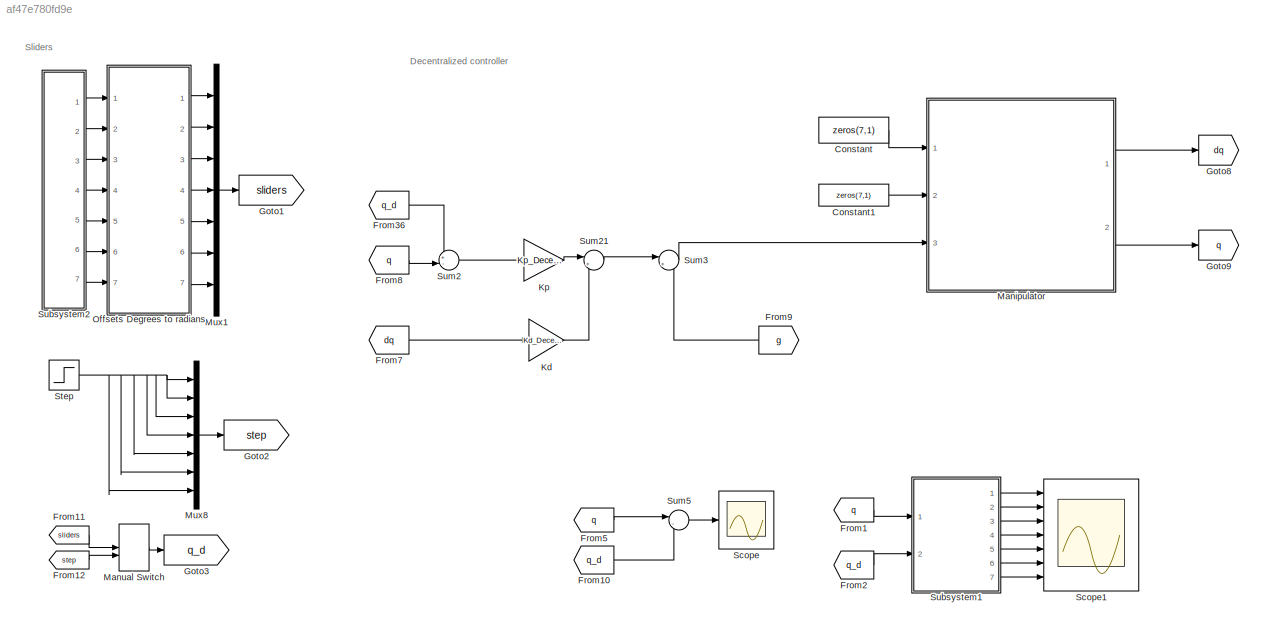
MODEL slx_af47e780fd9e
KIND model
CONFIG AbsTol = auto
CONFIG EnableMultiTasking = off
CONFIG FixedStep = auto
CONFIG MaxStep = auto
CONFIG MinStep = auto
CONFIG RelTol = 1e-3
CONFIG SampleTimeConstraint = Unconstrained
CONFIG Solver = VariableStepAuto
CONFIG SolverName = VariableStepAuto
CONFIG StartTime = 0.0
CONFIG StopTime = 5
BLOCK [Constant] Constant
  Value = zeros(7,1)
BLOCK [Constant] Constant1
  Value = zeros(7,1)
BLOCK [From] From1
  GotoTag = q
BLOCK [From] From10
  GotoTag = q_d
BLOCK [From] From11
  GotoTag = sliders
BLOCK [From] From12
  GotoTag = step
BLOCK [From] From2
  GotoTag = q_d
BLOCK [From] From36
  GotoTag = q_d
BLOCK [From] From5
  GotoTag = q
BLOCK [From] From7
  GotoTag = dq
BLOCK [From] From8
  GotoTag = q
BLOCK [From] From9
  GotoTag = g
  TagVisibility = global
BLOCK [Goto] Goto1
  GotoTag = sliders
BLOCK [Goto] Goto2
  GotoTag = step
BLOCK [Goto] Goto3
  GotoTag = q_d
BLOCK [Goto] Goto8
  GotoTag = dq
BLOCK [Goto] Goto9
  GotoTag = q
BLOCK [Gain] Kd
  Gain = Kd_Decent
  Multiplication = Matrix(K*u)
  OutDataTypeStr = Inherit: Inherit via internal rule
  ParamDataTypeStr = Inherit: Inherit via internal rule
  SaturateOnIntegerOverflow = off
BLOCK [Gain] Kp
  Gain = Kp_Decent
  Multiplication = Matrix(K*u)
  OutDataTypeStr = Inherit: Inherit via internal rule
  ParamDataTypeStr = Inherit: Inherit via internal rule
  SaturateOnIntegerOverflow = off
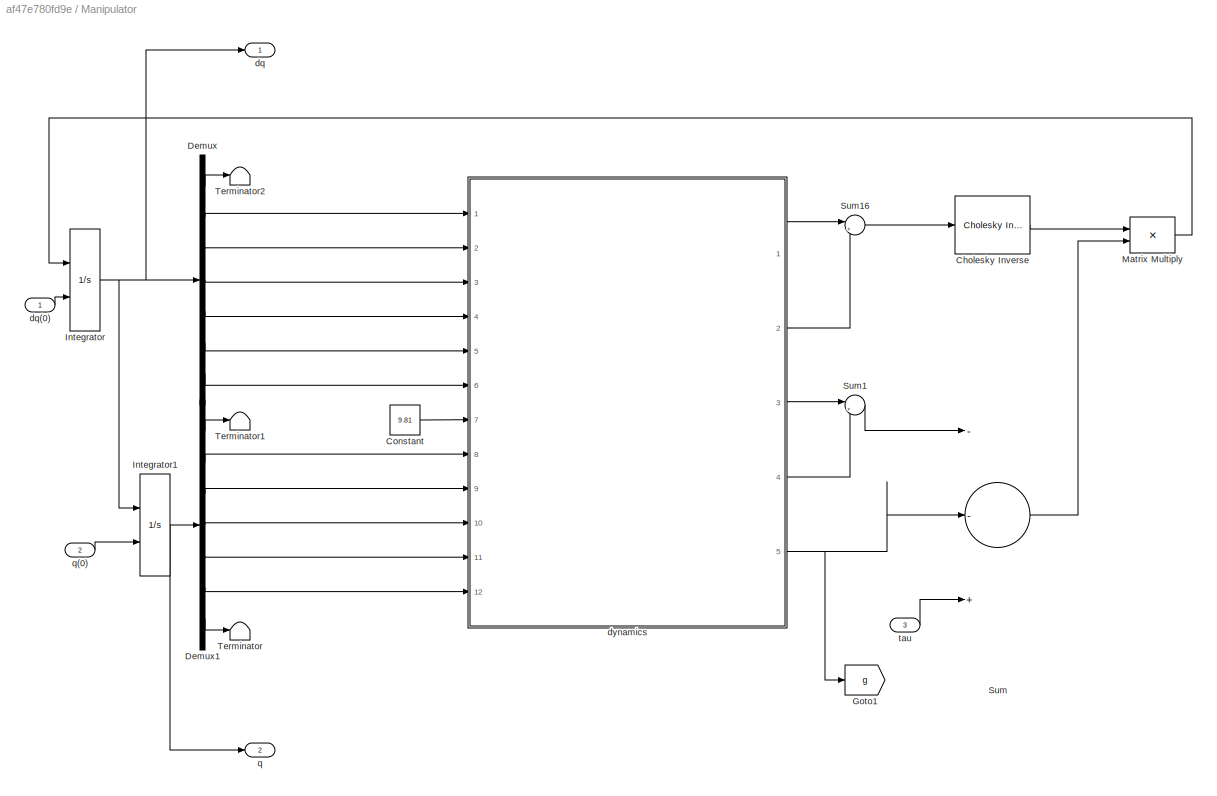
BLOCK [SubSystem] Manipulator
  Ports = [3, 2]
  RequestExecContextInheritance = off
BLOCK [Reference] Manipulator/Cholesky Inverse  REF=dspinverses/Cholesky Inverse
  Ports = [1, 1]
  SourceBlock = dspinverses/Cholesky Inverse
  SourceProductBaseCode = DS
  SourceProductName = DSP System Toolbox
  SourceType = Cholesky Inverse
BLOCK [Constant] Manipulator/Constant
  Value = 9.81
BLOCK [Demux] Manipulator/Demux
  DisplayOption = bar
  Outputs = 7
  Ports = [1, 7]
BLOCK [Demux] Manipulator/Demux1
  DisplayOption = bar
  Outputs = 7
  Ports = [1, 7]
BLOCK [Goto] Manipulator/Goto1
  GotoTag = g
  TagVisibility = global
BLOCK [Integrator] Manipulator/Integrator
  InitialConditionSource = external
  Ports = [2, 1]
BLOCK [Integrator] Manipulator/Integrator1
  InitialConditionSource = external
  Ports = [2, 1]
BLOCK [Product] Manipulator/Matrix Multiply
  InputSameDT = off
  Multiplication = Matrix(*)
  OutDataTypeStr = Inherit: Inherit via internal rule
  Ports = [2, 1]
  RndMeth = Floor
  SaturateOnIntegerOverflow = off
BLOCK [Sum] Manipulator/Sum
  InputSameDT = off
  Inputs = --+
  OutDataTypeStr = Inherit: Inherit via internal rule
  Ports = [3, 1]
  SaturateOnIntegerOverflow = off
BLOCK [Sum] Manipulator/Sum1
  IconShape = round
  InputSameDT = off
  Inputs = |++
  OutDataTypeStr = Inherit: Inherit via internal rule
  Ports = [2, 1]
  SaturateOnIntegerOverflow = off
BLOCK [Sum] Manipulator/Sum16
  IconShape = round
  InputSameDT = off
  Inputs = |++
  OutDataTypeStr = Inherit: Inherit via internal rule
  Ports = [2, 1]
  SaturateOnIntegerOverflow = off
BLOCK [Terminator] Manipulator/Terminator
BLOCK [Terminator] Manipulator/Terminator1
BLOCK [Terminator] Manipulator/Terminator2
BLOCK [Outport] Manipulator/dq
  IconDisplay = Port number
BLOCK [Inport] Manipulator/dq(0) 
  IconDisplay = Port number
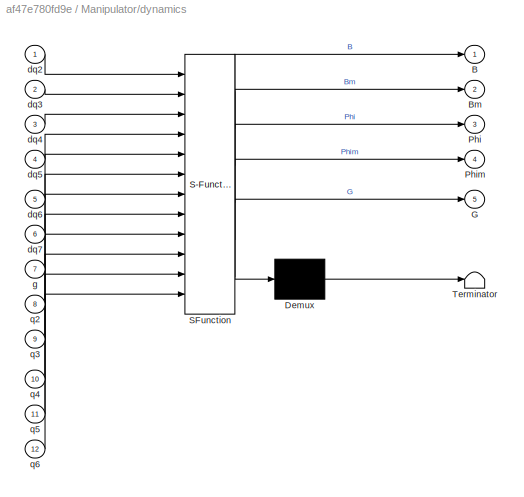
BLOCK [SubSystem] Manipulator/dynamics
  ErrorFcn = Stateflow.Translate.translate
  PermitHierarchicalResolution = ExplicitOnly
  Ports = [12, 5]
  RequestExecContextInheritance = off
  SFBlockType = MATLAB Function
  TreatAsAtomicUnit = on
BLOCK [Demux] Manipulator/dynamics/ Demux 
  Outputs = 1
  Ports = [1, 1]
BLOCK [S-Function] Manipulator/dynamics/ SFunction 
  EnableBusSupport = on
  FunctionName = sf_sfun
  PortCounts = [12 6]
  Ports = [12, 6]
  SFcnIsStateOwnerBlock = off
  SFunctionDeploymentMode = off
  Tag = Stateflow S-Function Decentralized_Cont 12
BLOCK [Terminator] Manipulator/dynamics/ Terminator 
BLOCK [Outport] Manipulator/dynamics/B
  IconDisplay = Port number
BLOCK [Outport] Manipulator/dynamics/Bm
  IconDisplay = Port number
  Port = 2
BLOCK [Outport] Manipulator/dynamics/G
  IconDisplay = Port number
  Port = 5
BLOCK [Outport] Manipulator/dynamics/Phi
  IconDisplay = Port number
  Port = 3
BLOCK [Outport] Manipulator/dynamics/Phim
  IconDisplay = Port number
  Port = 4
BLOCK [Inport] Manipulator/dynamics/dq2
  IconDisplay = Port number
BLOCK [Inport] Manipulator/dynamics/dq3
  IconDisplay = Port number
  Port = 2
BLOCK [Inport] Manipulator/dynamics/dq4
  IconDisplay = Port number
  Port = 3
BLOCK [Inport] Manipulator/dynamics/dq5
  IconDisplay = Port number
  Port = 4
BLOCK [Inport] Manipulator/dynamics/dq6
  IconDisplay = Port number
  Port = 5
BLOCK [Inport] Manipulator/dynamics/dq7
  IconDisplay = Port number
  Port = 6
BLOCK [Inport] Manipulator/dynamics/g
  IconDisplay = Port number
  Port = 7
BLOCK [Inport] Manipulator/dynamics/q2
  IconDisplay = Port number
  Port = 8
BLOCK [Inport] Manipulator/dynamics/q3
  IconDisplay = Port number
  Port = 9
BLOCK [Inport] Manipulator/dynamics/q4
  IconDisplay = Port number
  Port = 10
BLOCK [Inport] Manipulator/dynamics/q5
  IconDisplay = Port number
  Port = 11
BLOCK [Inport] Manipulator/dynamics/q6
  IconDisplay = Port number
  Port = 12
BLOCK [Outport] Manipulator/q
  IconDisplay = Port number
  Port = 2
BLOCK [Inport] Manipulator/q(0) 
  IconDisplay = Port number
  Port = 2
BLOCK [Inport] Manipulator/tau
  IconDisplay = Port number
  Port = 3
BLOCK [ManualSwitch] Manual Switch
  CurrentSetting = 0
BLOCK [Mux] Mux1
  DisplayOption = bar
  Inputs = 7
  Ports = [7, 1]
BLOCK [Mux] Mux8
  DisplayOption = bar
  Inputs = 7
  Ports = [7, 1]
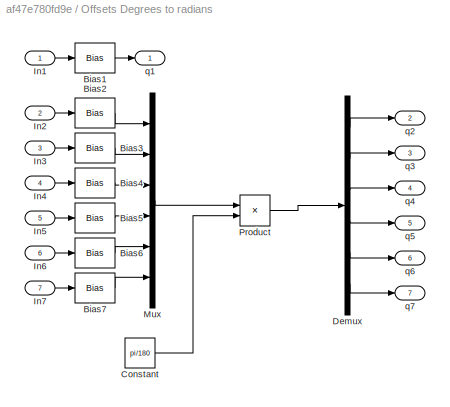
BLOCK [SubSystem] Offsets Degrees to radians
  Ports = [7, 7]
  RequestExecContextInheritance = off
BLOCK [Bias] Offsets Degrees to radians/Bias1
  SaturateOnIntegerOverflow = off
BLOCK [Bias] Offsets Degrees to radians/Bias2
  SaturateOnIntegerOverflow = off
BLOCK [Bias] Offsets Degrees to radians/Bias3
  SaturateOnIntegerOverflow = off
BLOCK [Bias] Offsets Degrees to radians/Bias4
  Bias = -90
  SaturateOnIntegerOverflow = off
BLOCK [Bias] Offsets Degrees to radians/Bias5
  SaturateOnIntegerOverflow = off
BLOCK [Bias] Offsets Degrees to radians/Bias6
  SaturateOnIntegerOverflow = off
BLOCK [Bias] Offsets Degrees to radians/Bias7
  Bias = 180
  SaturateOnIntegerOverflow = off
BLOCK [Constant] Offsets Degrees to radians/Constant
  Value = pi/180
BLOCK [Demux] Offsets Degrees to radians/Demux
  DisplayOption = bar
  Outputs = 6
  Ports = [1, 6]
BLOCK [Inport] Offsets Degrees to radians/In1
  IconDisplay = Port number
BLOCK [Inport] Offsets Degrees to radians/In2
  IconDisplay = Port number
  Port = 2
BLOCK [Inport] Offsets Degrees to radians/In3
  IconDisplay = Port number
  Port = 3
BLOCK [Inport] Offsets Degrees to radians/In4
  IconDisplay = Port number
  Port = 4
BLOCK [Inport] Offsets Degrees to radians/In5
  IconDisplay = Port number
  Port = 5
BLOCK [Inport] Offsets Degrees to radians/In6
  IconDisplay = Port number
  Port = 6
BLOCK [Inport] Offsets Degrees to radians/In7
  IconDisplay = Port number
  Port = 7
BLOCK [Mux] Offsets Degrees to radians/Mux
  DisplayOption = bar
  Inputs = 6
  Ports = [6, 1]
BLOCK [Product] Offsets Degrees to radians/Product
  InputSameDT = off
  OutDataTypeStr = Inherit: Inherit via internal rule
  Ports = [2, 1]
  RndMeth = Floor
  SaturateOnIntegerOverflow = off
BLOCK [Outport] Offsets Degrees to radians/q1
  IconDisplay = Port number
BLOCK [Outport] Offsets Degrees to radians/q2
  IconDisplay = Port number
  Port = 2
BLOCK [Outport] Offsets Degrees to radians/q3
  IconDisplay = Port number
  Port = 3
BLOCK [Outport] Offsets Degrees to radians/q4
  IconDisplay = Port number
  Port = 4
BLOCK [Outport] Offsets Degrees to radians/q5
  IconDisplay = Port number
  Port = 5
BLOCK [Outport] Offsets Degrees to radians/q6
  IconDisplay = Port number
  Port = 6
BLOCK [Outport] Offsets Degrees to radians/q7
  IconDisplay = Port number
  Port = 7
BLOCK [Scope] Scope
  Floating = off
  NumInputPorts = 1
  Ports = [1]
  ScopeSpecificationString = Simulink.scopes.TimeScopeBlockCfg('CurrentConfiguration', extmgr.ConfigurationSet(extmgr.Configuration('Core','General UI',true),extmgr.Configuration('Core','Source UI',true),extmgr.Configuration('Sources','WiredSimulink',true,'DataLoggingVariableName','ScopeData1','DataLogging',true,'DataLoggingSaveFormat','StructureWithTime'),extmgr.Configuration('Visuals','Time Domain',true,'SerializedDisplays'...<+1785ch>
BLOCK [Scope] Scope1
  Floating = off
  NumInputPorts = 7
  Ports = [7]
  ScopeSpecificationString = Simulink.scopes.TimeScopeBlockCfg('CurrentConfiguration', extmgr.ConfigurationSet(extmgr.Configuration('Core','General UI',true),extmgr.Configuration('Core','Source UI',true),extmgr.Configuration('Sources','WiredSimulink',true,'DataLoggingVariableName','ScopeData2'),extmgr.Configuration('Visuals','Time Domain',true,'SerializedDisplays',{struct('MinYLimReal','-0.18751','MaxYLimReal','1.6876','YLabe...<+6624ch>
BLOCK [Step] Step
  SampleTime = 0
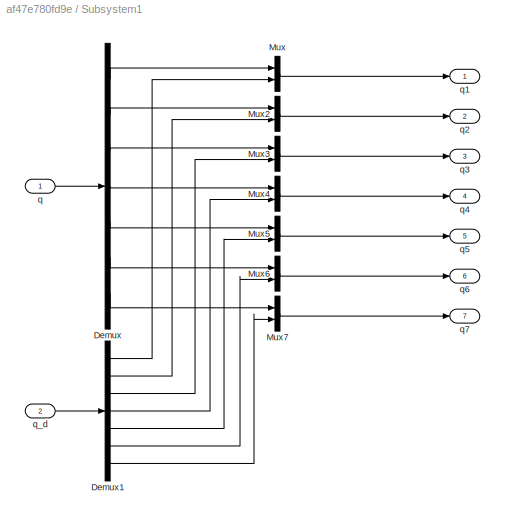
BLOCK [SubSystem] Subsystem1
  Ports = [2, 7]
  RequestExecContextInheritance = off
BLOCK [Demux] Subsystem1/Demux
  DisplayOption = bar
  Outputs = 7
  Ports = [1, 7]
BLOCK [Demux] Subsystem1/Demux1
  DisplayOption = bar
  Outputs = 7
  Ports = [1, 7]
BLOCK [Mux] Subsystem1/Mux
  DisplayOption = bar
  Inputs = 2
  Ports = [2, 1]
BLOCK [Mux] Subsystem1/Mux2
  DisplayOption = bar
  Inputs = 2
  Ports = [2, 1]
BLOCK [Mux] Subsystem1/Mux3
  DisplayOption = bar
  Inputs = 2
  Ports = [2, 1]
BLOCK [Mux] Subsystem1/Mux4
  DisplayOption = bar
  Inputs = 2
  Ports = [2, 1]
BLOCK [Mux] Subsystem1/Mux5
  DisplayOption = bar
  Inputs = 2
  Ports = [2, 1]
BLOCK [Mux] Subsystem1/Mux6
  DisplayOption = bar
  Inputs = 2
  Ports = [2, 1]
BLOCK [Mux] Subsystem1/Mux7
  DisplayOption = bar
  Inputs = 2
  Ports = [2, 1]
BLOCK [Inport] Subsystem1/q
  IconDisplay = Port number
BLOCK [Outport] Subsystem1/q1
  IconDisplay = Port number
BLOCK [Outport] Subsystem1/q2
  IconDisplay = Port number
  Port = 2
BLOCK [Outport] Subsystem1/q3
  IconDisplay = Port number
  Port = 3
BLOCK [Outport] Subsystem1/q4
  IconDisplay = Port number
  Port = 4
BLOCK [Outport] Subsystem1/q5
  IconDisplay = Port number
  Port = 5
BLOCK [Outport] Subsystem1/q6
  IconDisplay = Port number
  Port = 6
BLOCK [Outport] Subsystem1/q7
  IconDisplay = Port number
  Port = 7
BLOCK [Inport] Subsystem1/q_d
  IconDisplay = Port number
  Port = 2
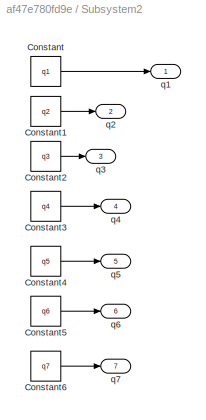
BLOCK [SubSystem] Subsystem2
  Ports = [0, 7]
  RequestExecContextInheritance = off
BLOCK [Constant] Subsystem2/Constant
  Value = q1
BLOCK [Constant] Subsystem2/Constant1
  Value = q2
BLOCK [Constant] Subsystem2/Constant2
  Value = q3
BLOCK [Constant] Subsystem2/Constant3
  Value = q4
BLOCK [Constant] Subsystem2/Constant4
  Value = q5
BLOCK [Constant] Subsystem2/Constant5
  Value = q6
BLOCK [Constant] Subsystem2/Constant6
  Value = q7
BLOCK [Outport] Subsystem2/q1
  IconDisplay = Port number
BLOCK [Outport] Subsystem2/q2
  IconDisplay = Port number
  Port = 2
BLOCK [Outport] Subsystem2/q3
  IconDisplay = Port number
  Port = 3
BLOCK [Outport] Subsystem2/q4
  IconDisplay = Port number
  Port = 4
BLOCK [Outport] Subsystem2/q5
  IconDisplay = Port number
  Port = 5
BLOCK [Outport] Subsystem2/q6
  IconDisplay = Port number
  Port = 6
BLOCK [Outport] Subsystem2/q7
  IconDisplay = Port number
  Port = 7
BLOCK [Sum] Sum2
  IconShape = round
  InputSameDT = off
  Inputs = +-|
  OutDataTypeStr = Inherit: Inherit via internal rule
  Ports = [2, 1]
  SaturateOnIntegerOverflow = off
BLOCK [Sum] Sum21
  IconShape = round
  InputSameDT = off
  Inputs = |+-
  OutDataTypeStr = Inherit: Inherit via internal rule
  Ports = [2, 1]
  SaturateOnIntegerOverflow = off
BLOCK [Sum] Sum3
  IconShape = round
  InputSameDT = off
  Inputs = |++
  OutDataTypeStr = Inherit: Inherit via internal rule
  Ports = [2, 1]
  SaturateOnIntegerOverflow = off
BLOCK [Sum] Sum5
  IconShape = round
  InputSameDT = off
  Inputs = |-+
  OutDataTypeStr = Inherit: Inherit via internal rule
  Ports = [2, 1]
  SaturateOnIntegerOverflow = off
ANNOTATION (root): Decentralized controller
ANNOTATION (root): Sliders
LINE Constant1:1 -> Manipulator:2
LINE Constant:1 -> Manipulator:1
LINE From10:1 -> Sum5:2
LINE From11:1 -> Manual Switch:1
LINE From12:1 -> Manual Switch:2
LINE From1:1 -> Subsystem1:1
LINE From2:1 -> Subsystem1:2
LINE From36:1 -> Sum2:1
LINE From5:1 -> Sum5:1
LINE From7:1 -> Kd:1
LINE From8:1 -> Sum2:2
LINE From9:1 -> Sum3:2
LINE Kd:1 -> Sum21:2
LINE Kp:1 -> Sum21:1
LINE Manipulator/Cholesky Inverse:1 -> Manipulator/Matrix Multiply:1
LINE Manipulator/Constant:1 -> Manipulator/dynamics:7
LINE Manipulator/Demux1:1 -> Manipulator/Terminator1:1
LINE Manipulator/Demux1:2 -> Manipulator/dynamics:8
LINE Manipulator/Demux1:3 -> Manipulator/dynamics:9
LINE Manipulator/Demux1:4 -> Manipulator/dynamics:10
LINE Manipulator/Demux1:5 -> Manipulator/dynamics:11
LINE Manipulator/Demux1:6 -> Manipulator/dynamics:12
LINE Manipulator/Demux1:7 -> Manipulator/Terminator:1
LINE Manipulator/Demux:1 -> Manipulator/Terminator2:1
LINE Manipulator/Demux:2 -> Manipulator/dynamics:1
LINE Manipulator/Demux:3 -> Manipulator/dynamics:2
LINE Manipulator/Demux:4 -> Manipulator/dynamics:3
LINE Manipulator/Demux:5 -> Manipulator/dynamics:4
LINE Manipulator/Demux:6 -> Manipulator/dynamics:5
LINE Manipulator/Demux:7 -> Manipulator/dynamics:6
NET Manipulator/Integrator1:1 -> Manipulator/Demux1:1, Manipulator/q:1
NET Manipulator/Integrator:1 -> Manipulator/Demux:1, Manipulator/Integrator1:1, Manipulator/dq:1
LINE Manipulator/Matrix Multiply:1 -> Manipulator/Integrator:1
LINE Manipulator/Sum16:1 -> Manipulator/Cholesky Inverse:1
LINE Manipulator/Sum1:1 -> Manipulator/Sum:1
LINE Manipulator/Sum:1 -> Manipulator/Matrix Multiply:2
LINE Manipulator/dq(0) :1 -> Manipulator/Integrator:2
LINE Manipulator/dynamics:1 -> Manipulator/Sum16:1
LINE Manipulator/dynamics:2 -> Manipulator/Sum16:2
LINE Manipulator/dynamics:3 -> Manipulator/Sum1:1
LINE Manipulator/dynamics:4 -> Manipulator/Sum1:2
NET Manipulator/dynamics:5 -> Manipulator/Goto1:1, Manipulator/Sum:2
LINE Manipulator/q(0) :1 -> Manipulator/Integrator1:2
LINE Manipulator/tau:1 -> Manipulator/Sum:3
LINE Manipulator:1 -> Goto8:1
LINE Manipulator:2 -> Goto9:1
LINE Manual Switch:1 -> Goto3:1
LINE Mux1:1 -> Goto1:1
LINE Mux8:1 -> Goto2:1
LINE Offsets Degrees to radians/Bias1:1 -> Offsets Degrees to radians/q1:1
LINE Offsets Degrees to radians/Bias2:1 -> Offsets Degrees to radians/Mux:1
LINE Offsets Degrees to radians/Bias3:1 -> Offsets Degrees to radians/Mux:2
LINE Offsets Degrees to radians/Bias4:1 -> Offsets Degrees to radians/Mux:3
LINE Offsets Degrees to radians/Bias5:1 -> Offsets Degrees to radians/Mux:4
LINE Offsets Degrees to radians/Bias6:1 -> Offsets Degrees to radians/Mux:5
LINE Offsets Degrees to radians/Bias7:1 -> Offsets Degrees to radians/Mux:6
LINE Offsets Degrees to radians/Constant:1 -> Offsets Degrees to radians/Product:2
LINE Offsets Degrees to radians/Demux:1 -> Offsets Degrees to radians/q2:1
LINE Offsets Degrees to radians/Demux:2 -> Offsets Degrees to radians/q3:1
LINE Offsets Degrees to radians/Demux:3 -> Offsets Degrees to radians/q4:1
LINE Offsets Degrees to radians/Demux:4 -> Offsets Degrees to radians/q5:1
LINE Offsets Degrees to radians/Demux:5 -> Offsets Degrees to radians/q6:1
LINE Offsets Degrees to radians/Demux:6 -> Offsets Degrees to radians/q7:1
LINE Offsets Degrees to radians/In1:1 -> Offsets Degrees to radians/Bias1:1
LINE Offsets Degrees to radians/In2:1 -> Offsets Degrees to radians/Bias2:1
LINE Offsets Degrees to radians/In3:1 -> Offsets Degrees to radians/Bias3:1
LINE Offsets Degrees to radians/In4:1 -> Offsets Degrees to radians/Bias4:1
LINE Offsets Degrees to radians/In5:1 -> Offsets Degrees to radians/Bias5:1
LINE Offsets Degrees to radians/In6:1 -> Offsets Degrees to radians/Bias6:1
LINE Offsets Degrees to radians/In7:1 -> Offsets Degrees to radians/Bias7:1
LINE Offsets Degrees to radians/Mux:1 -> Offsets Degrees to radians/Product:1
LINE Offsets Degrees to radians/Product:1 -> Offsets Degrees to radians/Demux:1
LINE Offsets Degrees to radians:1 -> Mux1:1
LINE Offsets Degrees to radians:2 -> Mux1:2
LINE Offsets Degrees to radians:3 -> Mux1:3
LINE Offsets Degrees to radians:4 -> Mux1:4
LINE Offsets Degrees to radians:5 -> Mux1:5
LINE Offsets Degrees to radians:6 -> Mux1:6
LINE Offsets Degrees to radians:7 -> Mux1:7
NET Step:1 -> Mux8:1, Mux8:2, Mux8:3, Mux8:4, Mux8:5, Mux8:6, Mux8:7
LINE Subsystem1/Demux1:1 -> Subsystem1/Mux:2
LINE Subsystem1/Demux1:2 -> Subsystem1/Mux2:2
LINE Subsystem1/Demux1:3 -> Subsystem1/Mux3:2
LINE Subsystem1/Demux1:4 -> Subsystem1/Mux4:2
LINE Subsystem1/Demux1:5 -> Subsystem1/Mux5:2
LINE Subsystem1/Demux1:6 -> Subsystem1/Mux6:2
LINE Subsystem1/Demux1:7 -> Subsystem1/Mux7:2
LINE Subsystem1/Demux:1 -> Subsystem1/Mux:1
LINE Subsystem1/Demux:2 -> Subsystem1/Mux2:1
LINE Subsystem1/Demux:3 -> Subsystem1/Mux3:1
LINE Subsystem1/Demux:4 -> Subsystem1/Mux4:1
LINE Subsystem1/Demux:5 -> Subsystem1/Mux5:1
LINE Subsystem1/Demux:6 -> Subsystem1/Mux6:1
LINE Subsystem1/Demux:7 -> Subsystem1/Mux7:1
LINE Subsystem1/Mux2:1 -> Subsystem1/q2:1
LINE Subsystem1/Mux3:1 -> Subsystem1/q3:1
LINE Subsystem1/Mux4:1 -> Subsystem1/q4:1
LINE Subsystem1/Mux5:1 -> Subsystem1/q5:1
LINE Subsystem1/Mux6:1 -> Subsystem1/q6:1
LINE Subsystem1/Mux7:1 -> Subsystem1/q7:1
LINE Subsystem1/Mux:1 -> Subsystem1/q1:1
LINE Subsystem1/q:1 -> Subsystem1/Demux:1
LINE Subsystem1/q_d:1 -> Subsystem1/Demux1:1
LINE Subsystem1:1 -> Scope1:1
LINE Subsystem1:2 -> Scope1:2
LINE Subsystem1:3 -> Scope1:3
LINE Subsystem1:4 -> Scope1:4
LINE Subsystem1:5 -> Scope1:5
LINE Subsystem1:6 -> Scope1:6
LINE Subsystem1:7 -> Scope1:7
LINE Subsystem2/Constant1:1 -> Subsystem2/q2:1
LINE Subsystem2/Constant2:1 -> Subsystem2/q3:1
LINE Subsystem2/Constant3:1 -> Subsystem2/q4:1
LINE Subsystem2/Constant4:1 -> Subsystem2/q5:1
LINE Subsystem2/Constant5:1 -> Subsystem2/q6:1
LINE Subsystem2/Constant6:1 -> Subsystem2/q7:1
LINE Subsystem2/Constant:1 -> Subsystem2/q1:1
LINE Subsystem2:1 -> Offsets Degrees to radians:1
LINE Subsystem2:2 -> Offsets Degrees to radians:2
LINE Subsystem2:3 -> Offsets Degrees to radians:3
LINE Subsystem2:4 -> Offsets Degrees to radians:4
LINE Subsystem2:5 -> Offsets Degrees to radians:5
LINE Subsystem2:6 -> Offsets Degrees to radians:6
LINE Subsystem2:7 -> Offsets Degrees to radians:7
LINE Sum21:1 -> Sum3:1
LINE Sum2:1 -> Kp:1
LINE Sum3:1 -> Manipulator:3
LINE Sum5:1 -> Scope:1
note: NET lines group one-source signal fan-out (src -> all destinations, sorted); 1:1 wires keep LINE
CHART Manipulator/dynamics states=1 transitions=1
  STATE_LABEL 'eML_blk_kernel()'
  STATE_LABEL 'SCRIPT:\nfunction [B,Bm,Phi,Phim,G] = dynamics(dq2,dq3,dq4,dq5,dq6,dq7,g,q2,q3,q4,q5,q6)\n%#codegen\n\n%    This function was generated by the Symbolic Math Toolbox version 8.1.\n%    27-May-2020 20:53:49\n\nt2 = cos(q2);\nt3 = sin(q2);\nt4 = sin(q5);\nt5 = cos(q3);\nt6 = cos(q4);\nt7 = sin(q3);\nt8 = sin(q4);\nt9 = cos(q5);\nt10 = cos(q6);\nt11 = sin(q6);\nt12 = t7.*t8.*1.4164748e7;\nt13 = t4.*t5.*t8.*1.79145e5;\nt...<+3608ch>'
